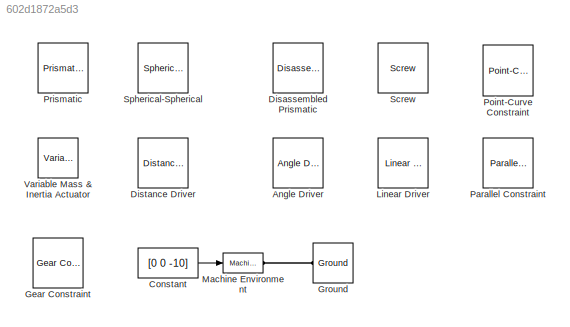
MODEL slx_602d1872a5d3
KIND model
CONFIG AbsTol = auto
CONFIG FixedStep = auto
CONFIG MaxStep = auto
CONFIG MinStep = auto
CONFIG RelTol = 1e-3
CONFIG SampleTimeConstraint = Unconstrained
CONFIG Solver = ode45
CONFIG SolverMode = SingleTasking
CONFIG SolverName = ode45
CONFIG StartTime = 0.0
CONFIG StopTime = 10.0
BLOCK [Reference] Angle Driver  REF=mblibv1/Constraints & 
Drivers/Angle Driver
  Ports = [0, 0, 0, 0, 0, 1, 1]
  SourceBlock = mblibv1/Constraints & \nDrivers/Angle Driver
  SourceType = Angle Driver
BLOCK [Constant] Constant
  Value = [0 0 -10]
BLOCK [Reference] Disassembled Prismatic  REF=mblibv1/Joints/Disassembled Joints/Disassembled Prismatic
  Ports = [0, 0, 0, 0, 0, 1, 1]
  SourceBlock = mblibv1/Joints/Disassembled Joints/Disassembled Prismatic
  SourceType = Disassembled Prismatic
BLOCK [Reference] Distance Driver  REF=mblibv1/Constraints & 
Drivers/Distance Driver
  Ports = [0, 0, 0, 0, 0, 1, 1]
  SourceBlock = mblibv1/Constraints & \nDrivers/Distance Driver
  SourceType = Distance Driver
BLOCK [Reference] Gear Constraint  REF=mblibv1/Constraints & 
Drivers/Gear Constraint
  Ports = [0, 0, 0, 0, 0, 1, 1]
  SourceBlock = mblibv1/Constraints & \nDrivers/Gear Constraint
  SourceType = Gear Constraint
BLOCK [Reference] Ground  REF=mblibv1/Bodies/Ground
  Ports = [0, 0, 0, 0, 0, 1, 1]
  SourceBlock = mblibv1/Bodies/Ground
  SourceType = Ground
  UserDataPersistent = on
BLOCK [Reference] Linear Driver  REF=mblibv1/Constraints & 
Drivers/Linear Driver
  Ports = [0, 0, 0, 0, 0, 1, 1]
  SourceBlock = mblibv1/Constraints & \nDrivers/Linear Driver
  SourceType = Linear Driver
BLOCK [Reference] Machine Environment  REF=mblibv1/Bodies/Machine
Environment
  Ports = [1, 0, 0, 0, 0, 0, 1]
  SourceBlock = mblibv1/Bodies/Machine\nEnvironment
  SourceType = Machine Environment
BLOCK [Reference] Parallel Constraint  REF=mblibv1/Constraints & 
Drivers/Parallel Constraint
  Ports = [0, 0, 0, 0, 0, 1, 1]
  SourceBlock = mblibv1/Constraints & \nDrivers/Parallel Constraint
  SourceType = Parallel Constraint
BLOCK [Reference] Point-Curve Constraint  REF=mblibv1/Constraints & 
Drivers/Point-Curve Constraint
  Ports = [0, 0, 0, 0, 0, 2, 1]
  SourceBlock = mblibv1/Constraints & \nDrivers/Point-Curve Constraint
  SourceType = Point-Curve Constraint
BLOCK [Reference] Prismatic  REF=mblibv1/Joints/Prismatic
  Ports = [0, 0, 0, 0, 0, 1, 1]
  SourceBlock = mblibv1/Joints/Prismatic
  SourceType = Prismatic
BLOCK [Reference] Screw  REF=mblibv1/Joints/Screw
  Ports = [0, 0, 0, 0, 0, 1, 1]
  SourceBlock = mblibv1/Joints/Screw
  SourceType = Screw
BLOCK [Reference] Spherical-Spherical  REF=mblibv1/Joints/Massless Connectors/Spherical-Spherical
  Ports = [0, 0, 0, 0, 0, 1, 1]
  SourceBlock = mblibv1/Joints/Massless Connectors/Spherical-Spherical
  SourceType = Spherical-Spherical
BLOCK [Reference] Variable Mass & Inertia Actuator  REF=mblibv1/Sensors & 
Actuators/Variable Mass &
Inertia Actuator
  Ports = [1, 0, 0, 0, 0, 0, 1]
  SourceBlock = mblibv1/Sensors & \nActuators/Variable Mass &\nInertia Actuator
  SourceType = Variable Mass & Inertia Actuator
LINE Constant:1 -> Machine Environment:1
PLINE Ground:LConn1 -- Machine Environment:RConn1
